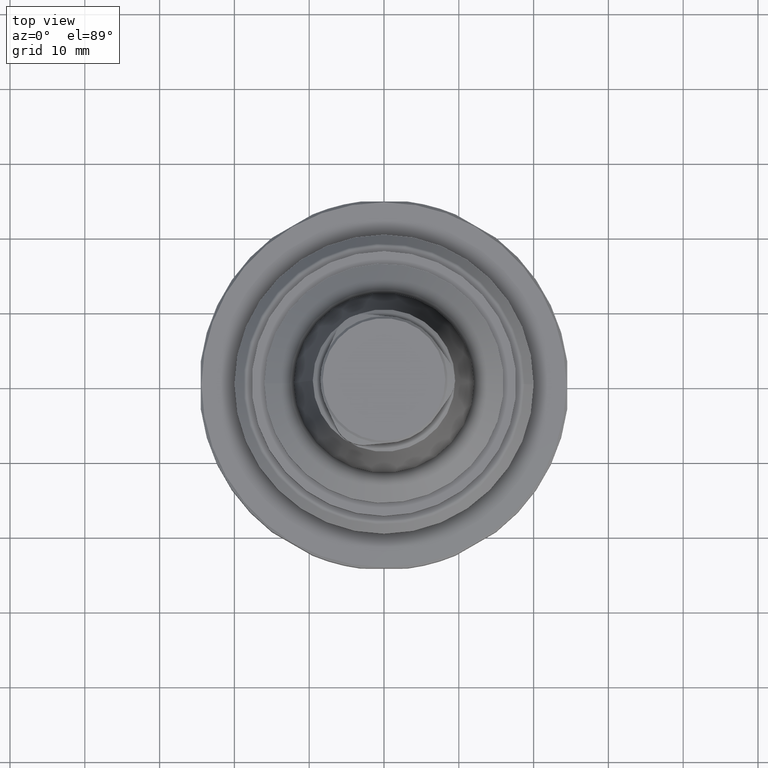
[diagram: clean part render]
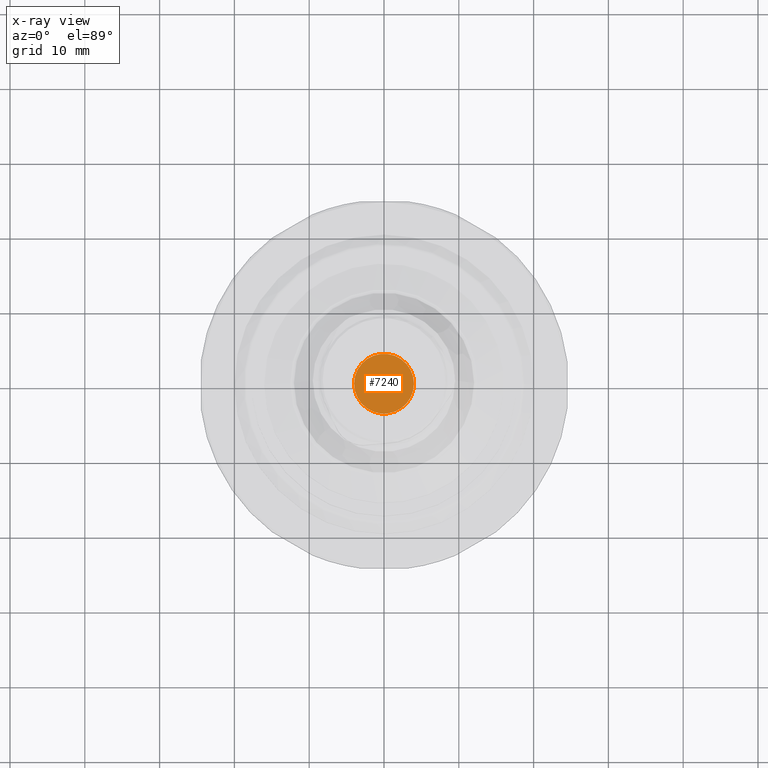
[diagram: x-ray — body ghosted, one internal face saturated and labeled with its STEP entity id]
A machine part, top view, then the same camera in x-ray: the body is ghosted and one INTERNAL B-rep face — a face not visible from any outside direction — is saturated and labeled: STEP entity #7240.
In plain terms, the highlighted planar face has unit normal (0, 0, 1).
Its self-contained STEP definition (entity closure, byte-faithful):
#518 = CYLINDRICAL_SURFACE('',#519,4.);
#519 = AXIS2_PLACEMENT_3D('',#520,#521,#522);
#520 = CARTESIAN_POINT('',(0.E+000,0.E+000,6.));
#521 = DIRECTION('',(0.E+000,0.E+000,1.));
#522 = DIRECTION('',(1.,0.E+000,-0.E+000));
#7240 = ADVANCED_FACE('',(#7241),#7254,.F.);
#7241 = FACE_BOUND('',#7242,.T.);
#7242 = EDGE_LOOP('',(#7243));
#7243 = ORIENTED_EDGE('',*,*,#7244,.F.);
#7244 = EDGE_CURVE('',#7245,#7245,#7247,.T.);
#7245 = VERTEX_POINT('',#7246);
#7246 = CARTESIAN_POINT('',(4.,0.E+000,6.));
#7247 = SURFACE_CURVE('',#7248,(#7253,#7265),.PCURVE_S1.);
#7248 = CIRCLE('',#7249,4.);
#7249 = AXIS2_PLACEMENT_3D('',#7250,#7251,#7252);
#7250 = CARTESIAN_POINT('',(0.E+000,0.E+000,6.));
#7251 = DIRECTION('',(0.E+000,0.E+000,1.));
#7252 = DIRECTION('',(1.,0.E+000,-0.E+000));
#7253 = PCURVE('',#7254,#7259);
#7254 = PLANE('',#7255);
#7255 = AXIS2_PLACEMENT_3D('',#7256,#7257,#7258);
#7256 = CARTESIAN_POINT('',(4.,0.E+000,6.));
#7257 = DIRECTION('',(0.E+000,0.E+000,1.));
#7258 = DIRECTION('',(1.,0.E+000,-0.E+000));
#7259 = DEFINITIONAL_REPRESENTATION('',(#7260),#7264);
#7260 = CIRCLE('',#7261,4.);
#7261 = AXIS2_PLACEMENT_2D('',#7262,#7263);
#7262 = CARTESIAN_POINT('',(-4.,0.E+000));
#7263 = DIRECTION('',(1.,0.E+000));
#7264 = ( GEOMETRIC_REPRESENTATION_CONTEXT(2) 
PARAMETRIC_REPRESENTATION_CONTEXT() REPRESENTATION_CONTEXT('2D SPACE',''
  ) );
#7265 = PCURVE('',#518,#7266);
#7266 = DEFINITIONAL_REPRESENTATION('',(#7267),#7270);
#7267 = B_SPLINE_CURVE_WITH_KNOTS('',1,(#7268,#7269),.UNSPECIFIED.,.F.,
  .F.,(2,2),(0.E+000,6.28318530718),.PIECEWISE_BEZIER_KNOTS.);
#7268 = CARTESIAN_POINT('',(0.E+000,0.E+000));
#7269 = CARTESIAN_POINT('',(6.28318530718,0.E+000));
#7270 = ( GEOMETRIC_REPRESENTATION_CONTEXT(2) 
PARAMETRIC_REPRESENTATION_CONTEXT() REPRESENTATION_CONTEXT('2D SPACE',''
  ) );